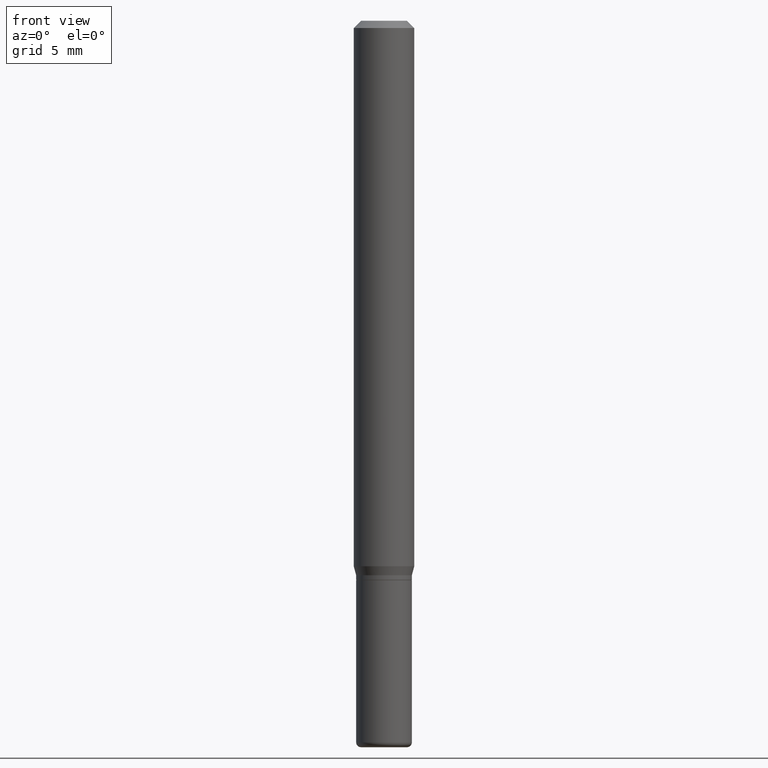
[diagram: clean part render]
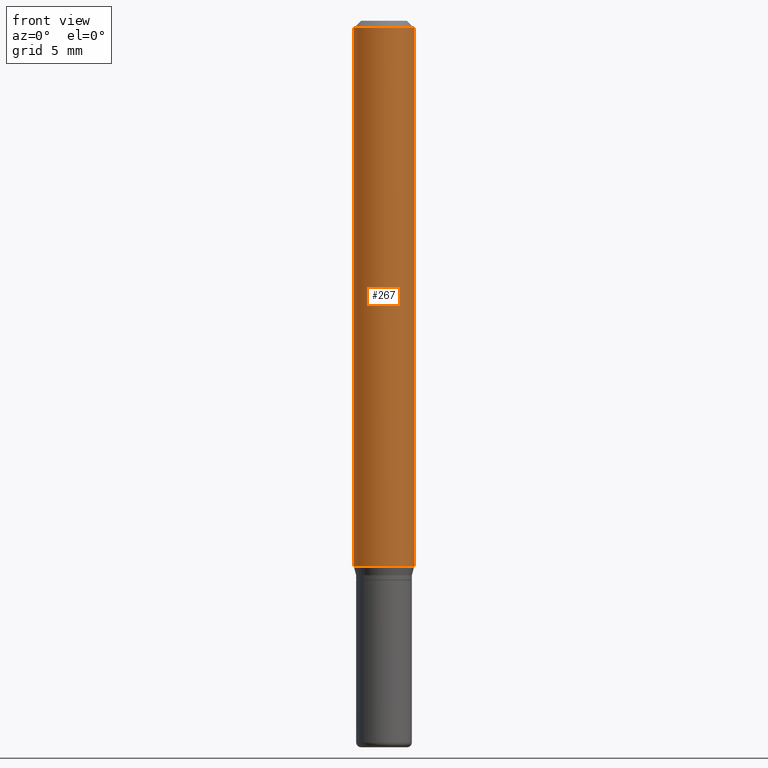
[diagram: same view with one face highlighted and labeled with its STEP entity id]
A machine part, front view. The second image highlights one B-rep face of the part: STEP entity #267.
In plain terms, the highlighted cylindrical surface (edge-blend (fillet) strip) has radius 1.5875 mm, axis along (-0, 0, 1).
Its self-contained STEP definition (entity closure, byte-faithful):
#2 = CARTESIAN_POINT ( 'NONE',  ( 2.754428713916942619E-29, -3.932594204224195830E-15, -1.126339745962155581 ) ) ;
#7 = DIRECTION ( 'NONE',  ( -2.445468806185136877E-29, 3.491481338843145188E-15, 1.000000000000000000 ) ) ;
#29 = VECTOR ( 'NONE', #129, 39.37007874015748143 ) ;
#32 = ORIENTED_EDGE ( 'NONE', *, *, #134, .T. ) ;
#84 = FACE_OUTER_BOUND ( 'NONE', #510, .T. ) ;
#85 = CARTESIAN_POINT ( 'NONE',  ( 3.668203209277632395E-31, -5.237222008264614861E-17, -0.01499999999999970281 ) ) ;
#90 = CARTESIAN_POINT ( 'NONE',  ( -0.06250000000000000000, 4.440892098500626162E-16, -3.074334431409316114E-30 ) ) ;
#105 = EDGE_CURVE ( 'NONE', #359, #127, #167, .T. ) ;
#126 = LINE ( 'NONE', #157, #29 ) ;
#127 = VERTEX_POINT ( 'NONE', #440 ) ;
#129 = DIRECTION ( 'NONE',  ( -2.445468806185136877E-29, 3.491481338843145188E-15, 1.000000000000000000 ) ) ;
#134 = EDGE_CURVE ( 'NONE', #127, #438, #126, .T. ) ;
#154 = CARTESIAN_POINT ( 'NONE',  ( 0.000000000000000000, 0.000000000000000000, 0.000000000000000000 ) ) ;
#157 = CARTESIAN_POINT ( 'NONE',  ( 0.06250000000000000000, -4.364351673553916694E-16, 3.047610484872459871E-30 ) ) ;
#167 = CIRCLE ( 'NONE', #390, 0.06250000000000000000 ) ;
#170 = CARTESIAN_POINT ( 'NONE',  ( -0.06250000000000000000, -3.488504994374132819E-15, -1.126339745962155581 ) ) ;
#195 = DIRECTION ( 'NONE',  ( 1.000000000000000000, -6.982962677686266711E-15, 0.000000000000000000 ) ) ;
#207 = DIRECTION ( 'NONE',  ( 1.000000000000000000, -6.982962677686270655E-15, 0.000000000000000000 ) ) ;
#242 = DIRECTION ( 'NONE',  ( -2.445468806185136597E-29, 3.491481338843145583E-15, 1.000000000000000000 ) ) ;
#253 = EDGE_CURVE ( 'NONE', #412, #438, #485, .T. ) ;
#267 = ADVANCED_FACE ( 'NONE', ( #84 ), #370, .T. ) ;
#298 = ORIENTED_EDGE ( 'NONE', *, *, #253, .F. ) ;
#315 = DIRECTION ( 'NONE',  ( -2.445468806185136597E-29, 3.491481338843145583E-15, 1.000000000000000000 ) ) ;
#327 = DIRECTION ( 'NONE',  ( -2.445468806185136597E-29, 3.491481338843145583E-15, 1.000000000000000000 ) ) ;
#334 = CARTESIAN_POINT ( 'NONE',  ( -0.06250000000000000000, -1.548394002303358444E-15, -0.01499999999999970281 ) ) ;
#335 = ORIENTED_EDGE ( 'NONE', *, *, #353, .F. ) ;
#336 = AXIS2_PLACEMENT_3D ( 'NONE', #154, #315, #473 ) ;
#346 = AXIS2_PLACEMENT_3D ( 'NONE', #85, #242, #195 ) ;
#353 = EDGE_CURVE ( 'NONE', #359, #412, #448, .T. ) ;
#359 = VERTEX_POINT ( 'NONE', #170 ) ;
#370 = CYLINDRICAL_SURFACE ( 'NONE', #336, 0.06250000000000000000 ) ;
#390 = AXIS2_PLACEMENT_3D ( 'NONE', #2, #327, #207 ) ;
#412 = VERTEX_POINT ( 'NONE', #334 ) ;
#438 = VERTEX_POINT ( 'NONE', #445 ) ;
#440 = CARTESIAN_POINT ( 'NONE',  ( 0.06250000000000000000, -4.369029371579586711E-15, -1.126339745962155581 ) ) ;
#445 = CARTESIAN_POINT ( 'NONE',  ( 0.06250000000000000000, -4.888073874380378612E-16, -0.01499999999999970281 ) ) ;
#448 = LINE ( 'NONE', #90, #504 ) ;
#473 = DIRECTION ( 'NONE',  ( 1.000000000000000000, -6.982962677686266711E-15, 4.876176775795935793E-29 ) ) ;
#485 = CIRCLE ( 'NONE', #346, 0.06250000000000000000 ) ;
#504 = VECTOR ( 'NONE', #7, 39.37007874015748143 ) ;
#510 = EDGE_LOOP ( 'NONE', ( #335, #513, #32, #298 ) ) ;
#513 = ORIENTED_EDGE ( 'NONE', *, *, #105, .T. ) ;